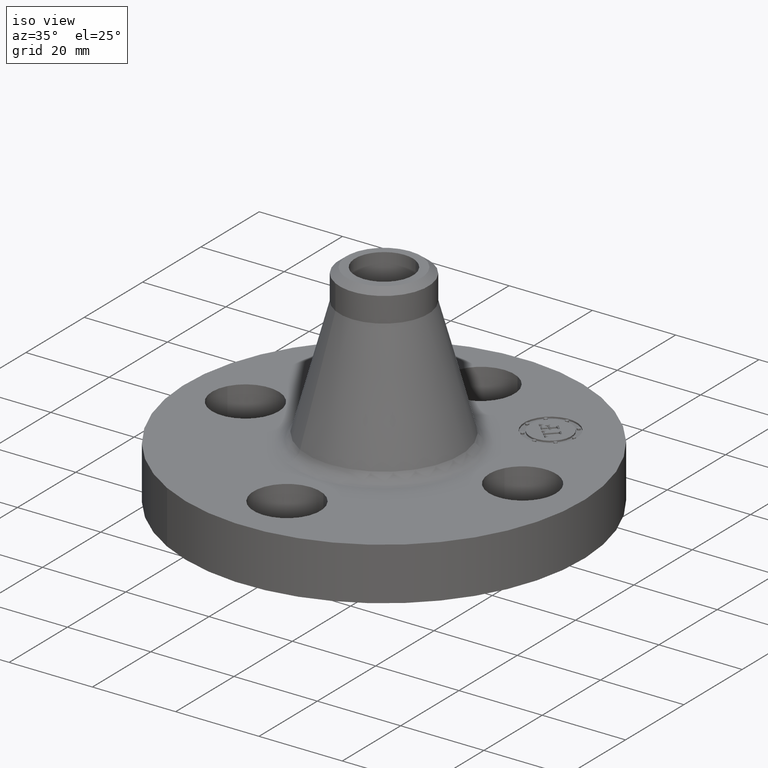
[diagram: clean part render]
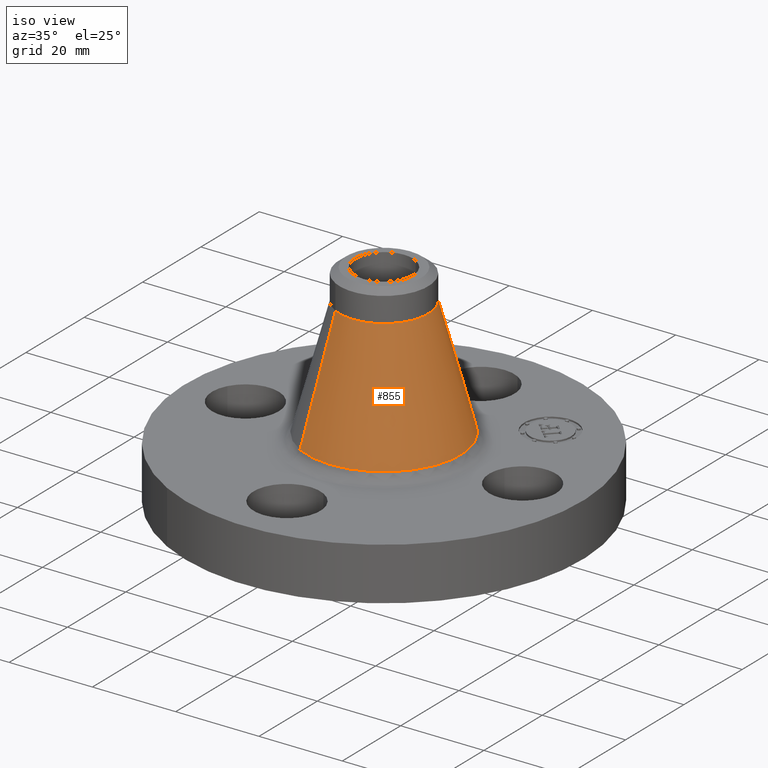
[diagram: same view with one face highlighted and labeled with its STEP entity id]
A machine part, iso view. The second image highlights one B-rep face of the part: STEP entity #855.
In plain terms, the highlighted conical surface has half-angle 15.238 deg.
Its self-contained STEP definition (entity closure, byte-faithful):
#635=AXIS2_PLACEMENT_3D('Circle Axis2P3D',#633,#634,$) ;
#842=AXIS2_PLACEMENT_3D('Cone Axis2P3D',#839,#840,#841) ;
#846=AXIS2_PLACEMENT_3D('Circle Axis2P3D',#844,#845,$) ;
#599=CARTESIAN_POINT('Vertex',(-0.348016189981,-0.637039362717,0.5884599252)) ;
#606=CARTESIAN_POINT('Vertex',(0.348016189981,0.637039362717,0.5884599252)) ;
#633=CARTESIAN_POINT('Axis2P3D Location',(0.,0.,0.5884599252)) ;
#806=CARTESIAN_POINT('Line Origine',(-0.274687458098,-0.502812019356,1.14993091671)) ;
#810=CARTESIAN_POINT('Vertex',(-0.201358726215,-0.368584675996,1.71140190821)) ;
#817=CARTESIAN_POINT('Vertex',(0.201358726215,0.368584675996,1.71140190821)) ;
#820=CARTESIAN_POINT('Line Origine',(0.274687458098,0.502812019356,1.14993091671)) ;
#839=CARTESIAN_POINT('Axis2P3D Location',(0.,0.,1.71140190821)) ;
#844=CARTESIAN_POINT('Axis2P3D Location',(0.,0.,1.71140190821)) ;
#634=DIRECTION('Axis2P3D Direction',(-0.,0.,-0.0393700787402)) ;
#807=DIRECTION('Vector Direction',(-0.00496099650577,-0.00908104319126,-0.0379858693231)) ;
#821=DIRECTION('Vector Direction',(0.00496099650577,0.00908104319126,-0.0379858693231)) ;
#840=DIRECTION('Axis2P3D Direction',(0.,0.,-0.0393700787402)) ;
#841=DIRECTION('Axis2P3D XDirection',(0.0188750212049,0.0345504945626,0.)) ;
#845=DIRECTION('Axis2P3D Direction',(-0.,0.,-0.0393700787402)) ;
#808=VECTOR('Line Direction',#807,0.0393700787402) ;
#822=VECTOR('Line Direction',#821,0.0393700787402) ;
#850=ORIENTED_EDGE('',*,*,#637,.F.) ;
#851=ORIENTED_EDGE('',*,*,#824,.T.) ;
#852=ORIENTED_EDGE('',*,*,#848,.T.) ;
#853=ORIENTED_EDGE('',*,*,#812,.F.) ;
#855=ADVANCED_FACE('PartBody',(#854),#843,.T.) ;
#636=CIRCLE('generated circle',#635,0.725902485283) ;
#847=CIRCLE('generated circle',#846,0.420000000002) ;
#843=CONICAL_SURFACE('Cone',#842,0.420000000002,0.265958259364) ;
#637=EDGE_CURVE('',#607,#600,#636,.T.) ;
#812=EDGE_CURVE('',#600,#811,#809,.F.) ;
#824=EDGE_CURVE('',#607,#818,#823,.F.) ;
#848=EDGE_CURVE('',#818,#811,#847,.T.) ;
#849=EDGE_LOOP('',(#850,#851,#852,#853)) ;
#854=FACE_OUTER_BOUND('',#849,.T.) ;
#809=LINE('Line',#806,#808) ;
#823=LINE('Line',#820,#822) ;
#600=VERTEX_POINT('',#599) ;
#607=VERTEX_POINT('',#606) ;
#811=VERTEX_POINT('',#810) ;
#818=VERTEX_POINT('',#817) ;